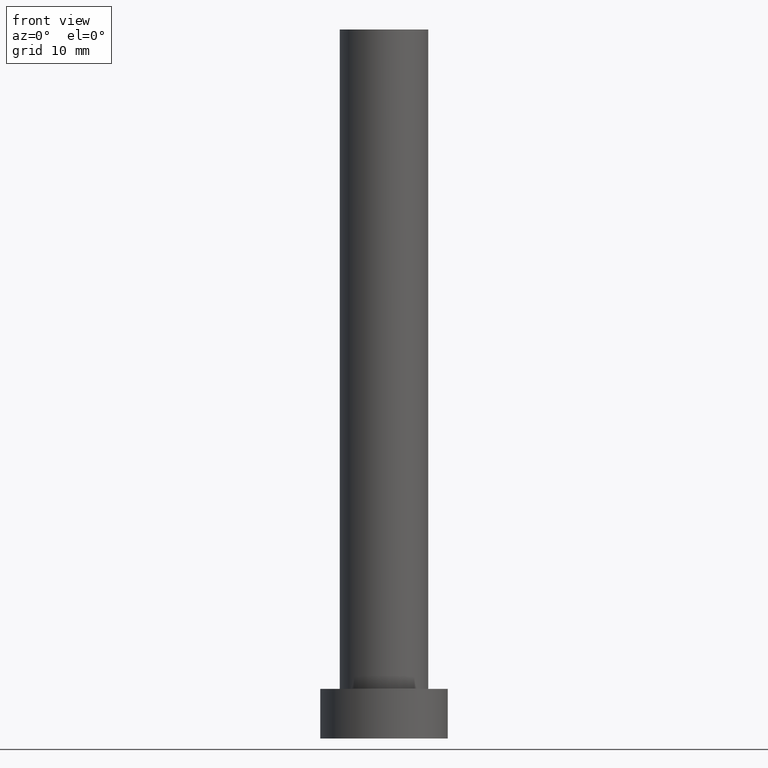
[diagram: clean part render]
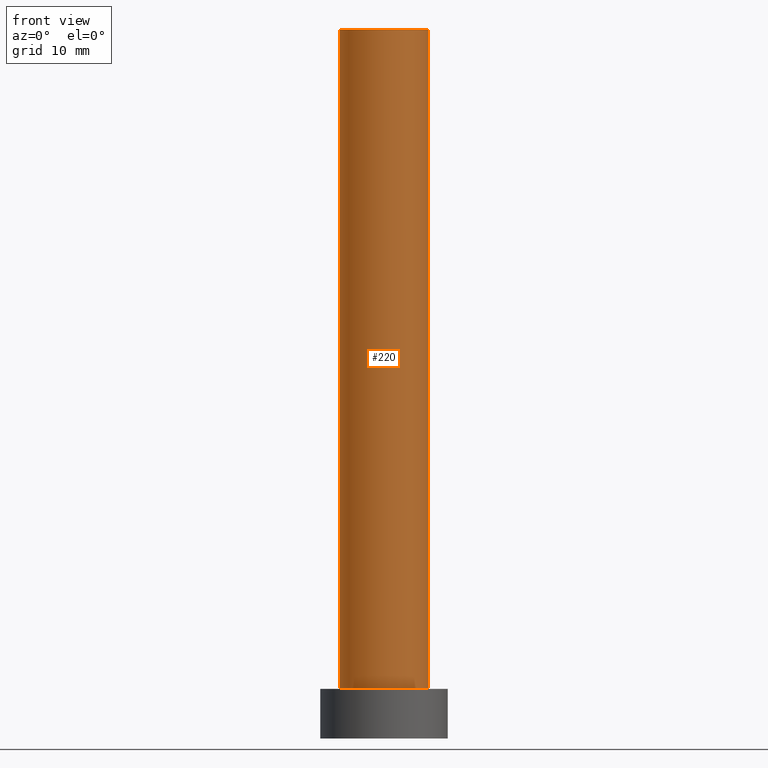
[diagram: same view with one face highlighted and labeled with its STEP entity id]
A machine part, front view. The second image highlights one B-rep face of the part: STEP entity #220.
In plain terms, the highlighted cylindrical surface (partial cylindrical patch) has radius 6.25 mm, axis along (-0, -0, -1).
Its self-contained STEP definition (entity closure, byte-faithful):
#1 = CIRCLE ( 'NONE', #36, 6.250000000000000000 ) ;
#7 = DIRECTION ( 'NONE',  ( -1.000000000000000000, 0.000000000000000000, 0.000000000000000000 ) ) ;
#31 = CARTESIAN_POINT ( 'NONE',  ( 6.250000000000000000, 7.654042494670955634E-16, 7.000000000000000000 ) ) ;
#33 = VERTEX_POINT ( 'NONE', #53 ) ;
#34 = CARTESIAN_POINT ( 'NONE',  ( 6.250000000000000000, 7.654042494670955634E-16, 100.0000000000000000 ) ) ;
#36 = AXIS2_PLACEMENT_3D ( 'NONE', #132, #123, #92 ) ;
#38 = VERTEX_POINT ( 'NONE', #31 ) ;
#51 = DIRECTION ( 'NONE',  ( -0.000000000000000000, -0.000000000000000000, -1.000000000000000000 ) ) ;
#53 = CARTESIAN_POINT ( 'NONE',  ( -6.250000000000000000, 0.000000000000000000, 100.0000000000000000 ) ) ;
#55 = VERTEX_POINT ( 'NONE', #34 ) ;
#65 = AXIS2_PLACEMENT_3D ( 'NONE', #217, #51, #7 ) ;
#81 = EDGE_CURVE ( 'NONE', #55, #38, #191, .T. ) ;
#92 = DIRECTION ( 'NONE',  ( 1.000000000000000000, 0.000000000000000000, 0.000000000000000000 ) ) ;
#102 = DIRECTION ( 'NONE',  ( 1.000000000000000000, 0.000000000000000000, 0.000000000000000000 ) ) ;
#104 = AXIS2_PLACEMENT_3D ( 'NONE', #155, #193, #102 ) ;
#112 = CARTESIAN_POINT ( 'NONE',  ( -6.250000000000000000, 0.000000000000000000, 100.0000000000000000 ) ) ;
#113 = ORIENTED_EDGE ( 'NONE', *, *, #143, .T. ) ;
#123 = DIRECTION ( 'NONE',  ( 0.000000000000000000, 0.000000000000000000, 1.000000000000000000 ) ) ;
#124 = EDGE_LOOP ( 'NONE', ( #145, #207, #113, #129 ) ) ;
#127 = CYLINDRICAL_SURFACE ( 'NONE', #65, 6.250000000000000000 ) ;
#129 = ORIENTED_EDGE ( 'NONE', *, *, #153, .T. ) ;
#132 = CARTESIAN_POINT ( 'NONE',  ( 0.000000000000000000, 0.000000000000000000, 7.000000000000000000 ) ) ;
#140 = CIRCLE ( 'NONE', #104, 6.250000000000000000 ) ;
#143 = EDGE_CURVE ( 'NONE', #33, #168, #151, .T. ) ;
#145 = ORIENTED_EDGE ( 'NONE', *, *, #81, .F. ) ;
#151 = LINE ( 'NONE', #112, #199 ) ;
#153 = EDGE_CURVE ( 'NONE', #168, #38, #1, .T. ) ;
#155 = CARTESIAN_POINT ( 'NONE',  ( 0.000000000000000000, 0.000000000000000000, 100.0000000000000000 ) ) ;
#168 = VERTEX_POINT ( 'NONE', #223 ) ;
#191 = LINE ( 'NONE', #251, #210 ) ;
#193 = DIRECTION ( 'NONE',  ( 0.000000000000000000, 0.000000000000000000, 1.000000000000000000 ) ) ;
#199 = VECTOR ( 'NONE', #226, 1000.000000000000000 ) ;
#207 = ORIENTED_EDGE ( 'NONE', *, *, #245, .F. ) ;
#210 = VECTOR ( 'NONE', #249, 1000.000000000000000 ) ;
#217 = CARTESIAN_POINT ( 'NONE',  ( 0.000000000000000000, 0.000000000000000000, 100.0000000000000000 ) ) ;
#220 = ADVANCED_FACE ( 'NONE', ( #237 ), #127, .T. ) ;
#223 = CARTESIAN_POINT ( 'NONE',  ( -6.250000000000000000, 0.000000000000000000, 7.000000000000000000 ) ) ;
#226 = DIRECTION ( 'NONE',  ( -0.000000000000000000, -0.000000000000000000, -1.000000000000000000 ) ) ;
#237 = FACE_OUTER_BOUND ( 'NONE', #124, .T. ) ;
#245 = EDGE_CURVE ( 'NONE', #33, #55, #140, .T. ) ;
#249 = DIRECTION ( 'NONE',  ( -0.000000000000000000, -0.000000000000000000, -1.000000000000000000 ) ) ;
#251 = CARTESIAN_POINT ( 'NONE',  ( 6.250000000000000000, 7.654042494670955634E-16, 100.0000000000000000 ) ) ;